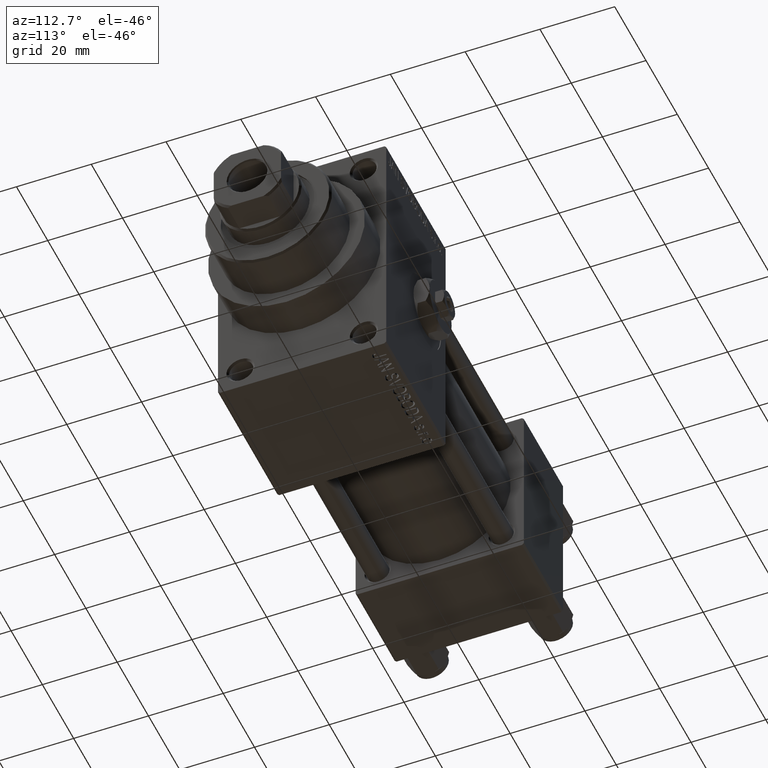
[diagram: clean part render]
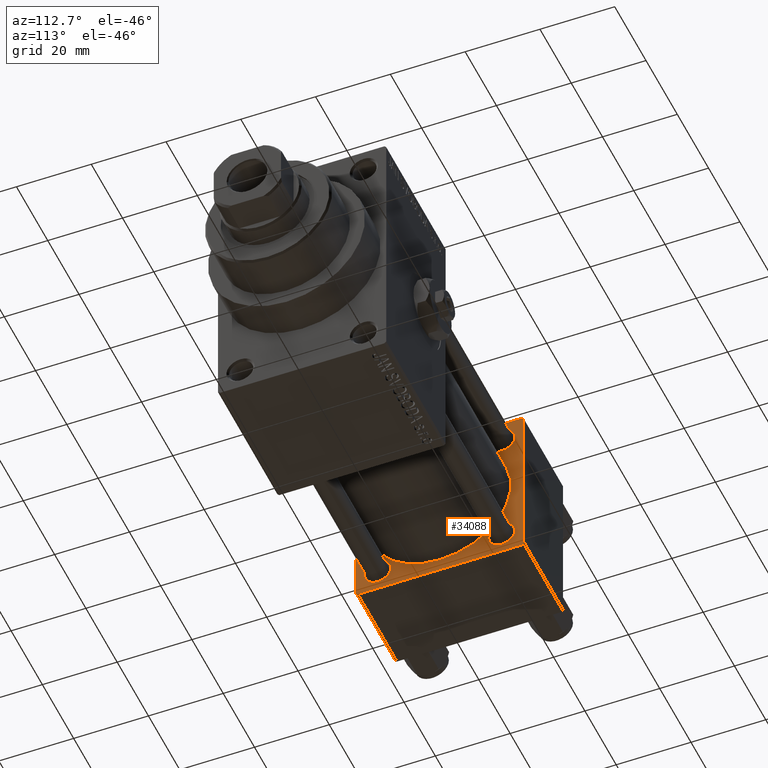
[diagram: same view with one face highlighted and labeled with its STEP entity id]
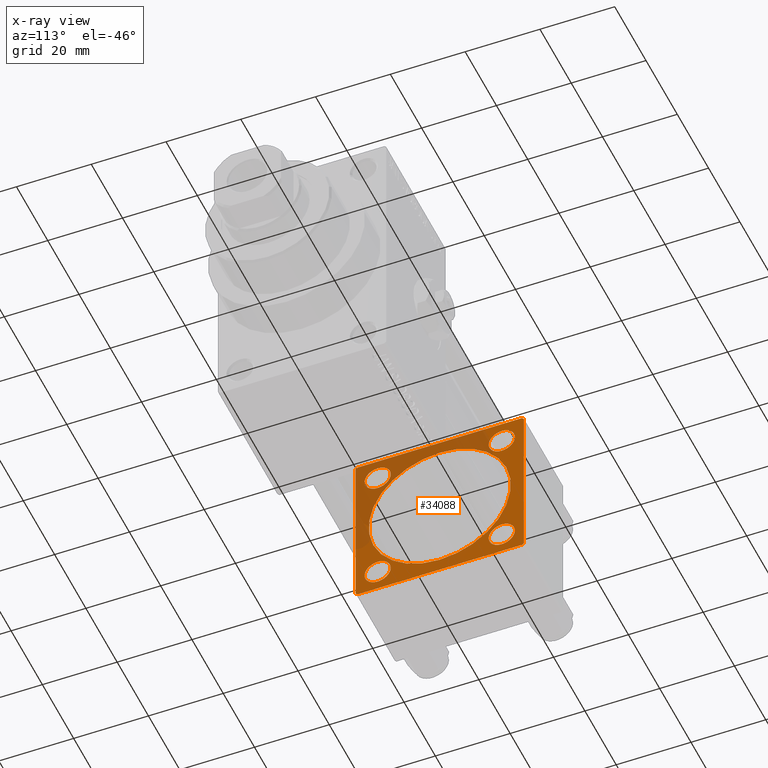
[diagram: x-ray of the same camera — body ghosted, the highlighted face saturated]
A machine part, auxiliary view. The second image highlights one B-rep face of the part: STEP entity #34088.
The next image is the same camera in x-ray: the body ghosted, the highlighted face saturated — about 37% of this face is hidden behind the body in this view.
In plain terms, the highlighted planar face has unit normal (-1, 0, 0).
Its self-contained STEP definition (entity closure, byte-faithful):
#177 = VERTEX_POINT ( 'NONE', #48698 ) ;
#521 = DIRECTION ( 'NONE',  ( 0.000000000000000000, -1.000000000000000000, -2.312964634635742957E-16 ) ) ;
#1009 = CIRCLE ( 'NONE', #10435, 3.500000000000020428 ) ;
#1064 = CARTESIAN_POINT ( 'NONE',  ( 25.00000000000000000, 16.59999999999999787, 16.60000000000000497 ) ) ;
#1126 = VECTOR ( 'NONE', #8348, 1000.000000000000000 ) ;
#1142 = CARTESIAN_POINT ( 'NONE',  ( 25.00000000000000000, -16.59999999999999076, 16.60000000000000853 ) ) ;
#1881 = AXIS2_PLACEMENT_3D ( 'NONE', #33697, #45034, #41340 ) ;
#1968 = CARTESIAN_POINT ( 'NONE',  ( 25.00000000000000000, 16.59999999999999787, 20.10000000000000853 ) ) ;
#2043 = CARTESIAN_POINT ( 'NONE',  ( 25.00000000000000000, 22.50000000000000000, 22.50000000000000355 ) ) ;
#2105 = EDGE_CURVE ( 'NONE', #17385, #32986, #5441, .T. ) ;
#2299 = CARTESIAN_POINT ( 'NONE',  ( 25.00000000000000000, -21.99999999999997868, 22.50000000000000000 ) ) ;
#2300 = FACE_BOUND ( 'NONE', #2635, .T. ) ;
#2323 = CARTESIAN_POINT ( 'NONE',  ( 25.00000000000000000, -16.59999999999999076, 20.10000000000002629 ) ) ;
#2635 = EDGE_LOOP ( 'NONE', ( #31293, #42694 ) ) ;
#3532 = VECTOR ( 'NONE', #24499, 1000.000000000000000 ) ;
#4349 = VERTEX_POINT ( 'NONE', #7599 ) ;
#5441 = LINE ( 'NONE', #28157, #15176 ) ;
#7159 = CIRCLE ( 'NONE', #32266, 3.500000000000003109 ) ;
#7471 = DIRECTION ( 'NONE',  ( 0.000000000000000000, 0.000000000000000000, 1.000000000000000000 ) ) ;
#7599 = CARTESIAN_POINT ( 'NONE',  ( 25.00000000000000000, -21.99999999999997158, -22.50000000000000711 ) ) ;
#7721 = CARTESIAN_POINT ( 'NONE',  ( 25.00000000000000000, -16.59999999999999076, 13.09999999999998721 ) ) ;
#7917 = CARTESIAN_POINT ( 'NONE',  ( 25.00000000000000000, 22.50000000000000000, -22.49999999999999645 ) ) ;
#8024 = VECTOR ( 'NONE', #521, 1000.000000000000000 ) ;
#8348 = DIRECTION ( 'NONE',  ( 0.000000000000000000, -1.000000000000000000, -7.709882115452476934E-17 ) ) ;
#8421 = LINE ( 'NONE', #7917, #8024 ) ;
#8719 = DIRECTION ( 'NONE',  ( -1.000000000000000000, 0.000000000000000000, -0.000000000000000000 ) ) ;
#8753 = VERTEX_POINT ( 'NONE', #47912 ) ;
#9293 = CARTESIAN_POINT ( 'NONE',  ( 25.00000000000000000, -22.50000000000000000, -21.99999999999997158 ) ) ;
#9933 = CARTESIAN_POINT ( 'NONE',  ( 25.00000000000000000, 16.59999999999999787, 16.60000000000000497 ) ) ;
#9947 = FACE_BOUND ( 'NONE', #47415, .T. ) ;
#10358 = LINE ( 'NONE', #47629, #32299 ) ;
#10435 = AXIS2_PLACEMENT_3D ( 'NONE', #46043, #12246, #42340 ) ;
#10553 = CIRCLE ( 'NONE', #1881, 3.500000000000016875 ) ;
#10560 = DIRECTION ( 'NONE',  ( 0.000000000000000000, 0.000000000000000000, 1.000000000000000000 ) ) ;
#10566 = ORIENTED_EDGE ( 'NONE', *, *, #15135, .T. ) ;
#10924 = FACE_BOUND ( 'NONE', #44149, .T. ) ;
#11167 = VECTOR ( 'NONE', #26799, 1000.000000000000000 ) ;
#11624 = ORIENTED_EDGE ( 'NONE', *, *, #30962, .T. ) ;
#11838 = CIRCLE ( 'NONE', #42582, 19.00000000000000000 ) ;
#11961 = EDGE_CURVE ( 'NONE', #16950, #16928, #39739, .T. ) ;
#12246 = DIRECTION ( 'NONE',  ( -1.000000000000000000, 0.000000000000000000, -0.000000000000000000 ) ) ;
#12296 = AXIS2_PLACEMENT_3D ( 'NONE', #43999, #37081, #13914 ) ;
#12927 = CARTESIAN_POINT ( 'NONE',  ( 25.00000000000000000, 21.99999999999999289, 22.50000000000000355 ) ) ;
#12950 = CARTESIAN_POINT ( 'NONE',  ( 25.00000000000000000, -2.602085213965210642E-15, 0.000000000000000000 ) ) ;
#13375 = ORIENTED_EDGE ( 'NONE', *, *, #19343, .T. ) ;
#13914 = DIRECTION ( 'NONE',  ( -0.000000000000000000, 0.000000000000000000, 1.000000000000000000 ) ) ;
#14251 = EDGE_CURVE ( 'NONE', #43219, #23645, #7159, .T. ) ;
#14740 = EDGE_CURVE ( 'NONE', #46030, #4349, #10358, .T. ) ;
#14757 = ORIENTED_EDGE ( 'NONE', *, *, #15980, .F. ) ;
#15135 = EDGE_CURVE ( 'NONE', #26865, #45367, #42515, .T. ) ;
#15176 = VECTOR ( 'NONE', #45925, 999.9999999999998863 ) ;
#15679 = CARTESIAN_POINT ( 'NONE',  ( 25.00000000000000000, -2.602085213965210642E-15, 19.00000000000000000 ) ) ;
#15877 = EDGE_LOOP ( 'NONE', ( #22263, #26993, #47475, #40081, #33510, #35741, #13375, #19719 ) ) ;
#15980 = EDGE_CURVE ( 'NONE', #177, #36868, #11838, .T. ) ;
#15992 = ORIENTED_EDGE ( 'NONE', *, *, #14251, .T. ) ;
#16392 = LINE ( 'NONE', #32588, #44415 ) ;
#16917 = AXIS2_PLACEMENT_3D ( 'NONE', #12950, #43043, #38849 ) ;
#16928 = VERTEX_POINT ( 'NONE', #38647 ) ;
#16950 = VERTEX_POINT ( 'NONE', #20167 ) ;
#17308 = VERTEX_POINT ( 'NONE', #12927 ) ;
#17361 = FACE_BOUND ( 'NONE', #33660, .T. ) ;
#17385 = VERTEX_POINT ( 'NONE', #2299 ) ;
#17419 = CARTESIAN_POINT ( 'NONE',  ( 25.00000000000000000, -2.602085213965210642E-15, 0.000000000000000000 ) ) ;
#17588 = CIRCLE ( 'NONE', #30959, 3.500000000000003109 ) ;
#18063 = CARTESIAN_POINT ( 'NONE',  ( 25.00000000000000000, 22.50000000000000000, 22.50000000000000355 ) ) ;
#18106 = EDGE_CURVE ( 'NONE', #8753, #47909, #26110, .T. ) ;
#18122 = VERTEX_POINT ( 'NONE', #40674 ) ;
#18633 = EDGE_LOOP ( 'NONE', ( #20069, #14757 ) ) ;
#19343 = EDGE_CURVE ( 'NONE', #32986, #46030, #48753, .T. ) ;
#19719 = ORIENTED_EDGE ( 'NONE', *, *, #14740, .T. ) ;
#20069 = ORIENTED_EDGE ( 'NONE', *, *, #26823, .F. ) ;
#20167 = CARTESIAN_POINT ( 'NONE',  ( 25.00000000000000000, 21.99999999999999289, -22.49999999999999645 ) ) ;
#20333 = EDGE_CURVE ( 'NONE', #16950, #4349, #8421, .T. ) ;
#21007 = CARTESIAN_POINT ( 'NONE',  ( 25.00000000000000000, 22.50000000000000000, -21.99999999999998224 ) ) ;
#22263 = ORIENTED_EDGE ( 'NONE', *, *, #20333, .F. ) ;
#22440 = DIRECTION ( 'NONE',  ( 0.000000000000000000, 0.000000000000000000, 1.000000000000000000 ) ) ;
#22658 = CARTESIAN_POINT ( 'NONE',  ( 25.00000000000000000, -16.59999999999999076, -13.09999999999999076 ) ) ;
#22884 = EDGE_CURVE ( 'NONE', #18122, #37359, #17588, .T. ) ;
#23645 = VERTEX_POINT ( 'NONE', #1968 ) ;
#24411 = VECTOR ( 'NONE', #46655, 1000.000000000000000 ) ;
#24499 = DIRECTION ( 'NONE',  ( 0.000000000000000000, 0.000000000000000000, -1.000000000000000000 ) ) ;
#25255 = PLANE ( 'NONE',  #12296 ) ;
#25312 = DIRECTION ( 'NONE',  ( 0.000000000000000000, 0.000000000000000000, 1.000000000000000000 ) ) ;
#26110 = CIRCLE ( 'NONE', #42647, 3.500000000000016875 ) ;
#26549 = EDGE_CURVE ( 'NONE', #17308, #17385, #27113, .T. ) ;
#26799 = DIRECTION ( 'NONE',  ( 0.000000000000000000, 0.000000000000000000, -1.000000000000000000 ) ) ;
#26823 = EDGE_CURVE ( 'NONE', #36868, #177, #35787, .T. ) ;
#26865 = VERTEX_POINT ( 'NONE', #2323 ) ;
#26993 = ORIENTED_EDGE ( 'NONE', *, *, #11961, .T. ) ;
#27113 = LINE ( 'NONE', #18063, #1126 ) ;
#27472 = EDGE_CURVE ( 'NONE', #46250, #16928, #47690, .T. ) ;
#27736 = EDGE_CURVE ( 'NONE', #37359, #18122, #31909, .T. ) ;
#27975 = DIRECTION ( 'NONE',  ( -1.000000000000000000, 0.000000000000000000, -0.000000000000000000 ) ) ;
#28157 = CARTESIAN_POINT ( 'NONE',  ( 25.00000000000000000, -22.50000000000000000, 22.00000000000000000 ) ) ;
#28301 = ORIENTED_EDGE ( 'NONE', *, *, #27736, .T. ) ;
#28783 = AXIS2_PLACEMENT_3D ( 'NONE', #1064, #8719, #31182 ) ;
#28793 = EDGE_CURVE ( 'NONE', #46250, #17308, #16392, .T. ) ;
#29199 = FACE_OUTER_BOUND ( 'NONE', #15877, .T. ) ;
#29438 = DIRECTION ( 'NONE',  ( -1.000000000000000000, 0.000000000000000000, -0.000000000000000000 ) ) ;
#29568 = EDGE_CURVE ( 'NONE', #47909, #8753, #10553, .T. ) ;
#30959 = AXIS2_PLACEMENT_3D ( 'NONE', #48585, #33779, #22440 ) ;
#30962 = EDGE_CURVE ( 'NONE', #23645, #43219, #40611, .T. ) ;
#30972 = CARTESIAN_POINT ( 'NONE',  ( 25.00000000000000000, 22.50000000000000000, 21.99999999999999645 ) ) ;
#31137 = CARTESIAN_POINT ( 'NONE',  ( 25.00000000000000000, 16.59999999999999787, -16.60000000000000497 ) ) ;
#31182 = DIRECTION ( 'NONE',  ( 0.000000000000000000, 0.000000000000000000, 1.000000000000000000 ) ) ;
#31293 = ORIENTED_EDGE ( 'NONE', *, *, #18106, .T. ) ;
#31909 = CIRCLE ( 'NONE', #32696, 3.500000000000003109 ) ;
#32266 = AXIS2_PLACEMENT_3D ( 'NONE', #9933, #27975, #39532 ) ;
#32299 = VECTOR ( 'NONE', #40470, 1000.000000000000000 ) ;
#32588 = CARTESIAN_POINT ( 'NONE',  ( 25.00000000000000000, 21.99999999999999289, 22.50000000000000355 ) ) ;
#32696 = AXIS2_PLACEMENT_3D ( 'NONE', #31137, #38295, #42473 ) ;
#32986 = VERTEX_POINT ( 'NONE', #43495 ) ;
#33510 = ORIENTED_EDGE ( 'NONE', *, *, #26549, .T. ) ;
#33512 = ORIENTED_EDGE ( 'NONE', *, *, #41669, .T. ) ;
#33660 = EDGE_LOOP ( 'NONE', ( #28301, #48829 ) ) ;
#33697 = CARTESIAN_POINT ( 'NONE',  ( 25.00000000000000000, -16.59999999999999076, -16.60000000000000853 ) ) ;
#33779 = DIRECTION ( 'NONE',  ( -1.000000000000000000, 0.000000000000000000, -0.000000000000000000 ) ) ;
#34088 = ADVANCED_FACE ( 'NONE', ( #2300, #17361, #10924, #9947, #40546, #29199 ), #25255, .F. ) ;
#34382 = CARTESIAN_POINT ( 'NONE',  ( 25.00000000000000000, 16.59999999999999787, 13.10000000000000142 ) ) ;
#35741 = ORIENTED_EDGE ( 'NONE', *, *, #2105, .T. ) ;
#35787 = CIRCLE ( 'NONE', #16917, 19.00000000000000000 ) ;
#36868 = VERTEX_POINT ( 'NONE', #15679 ) ;
#37081 = DIRECTION ( 'NONE',  ( -1.000000000000000000, 0.000000000000000000, -0.000000000000000000 ) ) ;
#37359 = VERTEX_POINT ( 'NONE', #44136 ) ;
#38295 = DIRECTION ( 'NONE',  ( -1.000000000000000000, 0.000000000000000000, -0.000000000000000000 ) ) ;
#38647 = CARTESIAN_POINT ( 'NONE',  ( 25.00000000000000000, 22.50000000000000000, -21.99999999999996803 ) ) ;
#38849 = DIRECTION ( 'NONE',  ( 0.000000000000000000, 0.000000000000000000, 1.000000000000000000 ) ) ;
#39532 = DIRECTION ( 'NONE',  ( 0.000000000000000000, 0.000000000000000000, 1.000000000000000000 ) ) ;
#39739 = LINE ( 'NONE', #21007, #24411 ) ;
#40081 = ORIENTED_EDGE ( 'NONE', *, *, #28793, .T. ) ;
#40470 = DIRECTION ( 'NONE',  ( 0.000000000000000000, 0.7071067811865426878, -0.7071067811865524577 ) ) ;
#40546 = FACE_BOUND ( 'NONE', #18633, .T. ) ;
#40611 = CIRCLE ( 'NONE', #28783, 3.500000000000003109 ) ;
#40674 = CARTESIAN_POINT ( 'NONE',  ( 25.00000000000000000, 16.59999999999999787, -13.10000000000000142 ) ) ;
#41340 = DIRECTION ( 'NONE',  ( 0.000000000000000000, 0.000000000000000000, 1.000000000000000000 ) ) ;
#41669 = EDGE_CURVE ( 'NONE', #45367, #26865, #1009, .T. ) ;
#41741 = AXIS2_PLACEMENT_3D ( 'NONE', #1142, #29438, #7471 ) ;
#42340 = DIRECTION ( 'NONE',  ( 0.000000000000000000, 0.000000000000000000, 1.000000000000000000 ) ) ;
#42473 = DIRECTION ( 'NONE',  ( 0.000000000000000000, 0.000000000000000000, 1.000000000000000000 ) ) ;
#42515 = CIRCLE ( 'NONE', #41741, 3.500000000000020428 ) ;
#42582 = AXIS2_PLACEMENT_3D ( 'NONE', #17419, #44053, #25312 ) ;
#42647 = AXIS2_PLACEMENT_3D ( 'NONE', #47582, #47082, #10560 ) ;
#42694 = ORIENTED_EDGE ( 'NONE', *, *, #29568, .T. ) ;
#43043 = DIRECTION ( 'NONE',  ( 1.000000000000000000, -0.000000000000000000, 0.000000000000000000 ) ) ;
#43219 = VERTEX_POINT ( 'NONE', #34382 ) ;
#43495 = CARTESIAN_POINT ( 'NONE',  ( 25.00000000000000000, -22.50000000000000000, 22.00000000000000000 ) ) ;
#43692 = DIRECTION ( 'NONE',  ( 0.000000000000000000, -0.7071067811865474617, 0.7071067811865474617 ) ) ;
#43999 = CARTESIAN_POINT ( 'NONE',  ( 25.00000000000000000, 0.000000000000000000, 0.000000000000000000 ) ) ;
#44053 = DIRECTION ( 'NONE',  ( 1.000000000000000000, -0.000000000000000000, 0.000000000000000000 ) ) ;
#44136 = CARTESIAN_POINT ( 'NONE',  ( 25.00000000000000000, 16.59999999999999787, -20.10000000000000853 ) ) ;
#44149 = EDGE_LOOP ( 'NONE', ( #33512, #10566 ) ) ;
#44415 = VECTOR ( 'NONE', #43692, 1000.000000000000114 ) ;
#44810 = CARTESIAN_POINT ( 'NONE',  ( 25.00000000000000000, -22.50000000000000000, 22.50000000000000000 ) ) ;
#45034 = DIRECTION ( 'NONE',  ( -1.000000000000000000, 0.000000000000000000, -0.000000000000000000 ) ) ;
#45367 = VERTEX_POINT ( 'NONE', #7721 ) ;
#45925 = DIRECTION ( 'NONE',  ( -0.000000000000000000, -0.7071067811865525687, -0.7071067811865425767 ) ) ;
#46030 = VERTEX_POINT ( 'NONE', #9293 ) ;
#46043 = CARTESIAN_POINT ( 'NONE',  ( 25.00000000000000000, -16.59999999999999076, 16.60000000000000853 ) ) ;
#46250 = VERTEX_POINT ( 'NONE', #30972 ) ;
#46655 = DIRECTION ( 'NONE',  ( -0.000000000000000000, 0.7071067811865426878, 0.7071067811865524577 ) ) ;
#47082 = DIRECTION ( 'NONE',  ( -1.000000000000000000, 0.000000000000000000, -0.000000000000000000 ) ) ;
#47415 = EDGE_LOOP ( 'NONE', ( #15992, #11624 ) ) ;
#47475 = ORIENTED_EDGE ( 'NONE', *, *, #27472, .F. ) ;
#47582 = CARTESIAN_POINT ( 'NONE',  ( 25.00000000000000000, -16.59999999999999076, -16.60000000000000853 ) ) ;
#47629 = CARTESIAN_POINT ( 'NONE',  ( 25.00000000000000000, -21.99999999999998579, -22.50000000000000711 ) ) ;
#47690 = LINE ( 'NONE', #2043, #3532 ) ;
#47909 = VERTEX_POINT ( 'NONE', #22658 ) ;
#47912 = CARTESIAN_POINT ( 'NONE',  ( 25.00000000000000000, -16.59999999999999076, -20.10000000000002274 ) ) ;
#48585 = CARTESIAN_POINT ( 'NONE',  ( 25.00000000000000000, 16.59999999999999787, -16.60000000000000497 ) ) ;
#48698 = CARTESIAN_POINT ( 'NONE',  ( 25.00000000000000000, -2.752562955852396712E-16, -19.00000000000000000 ) ) ;
#48753 = LINE ( 'NONE', #44810, #11167 ) ;
#48829 = ORIENTED_EDGE ( 'NONE', *, *, #22884, .T. ) ;